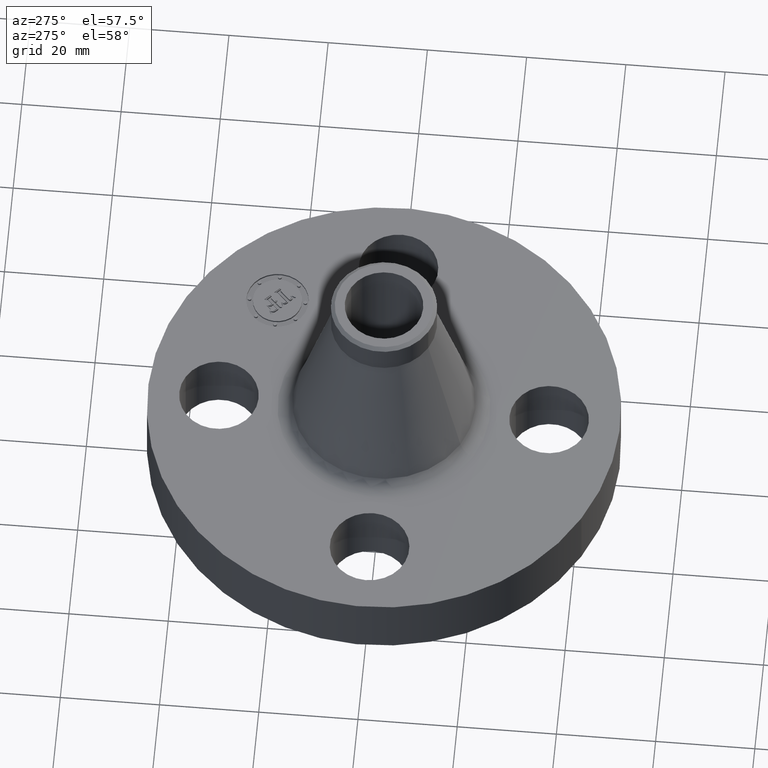
[diagram: clean part render]
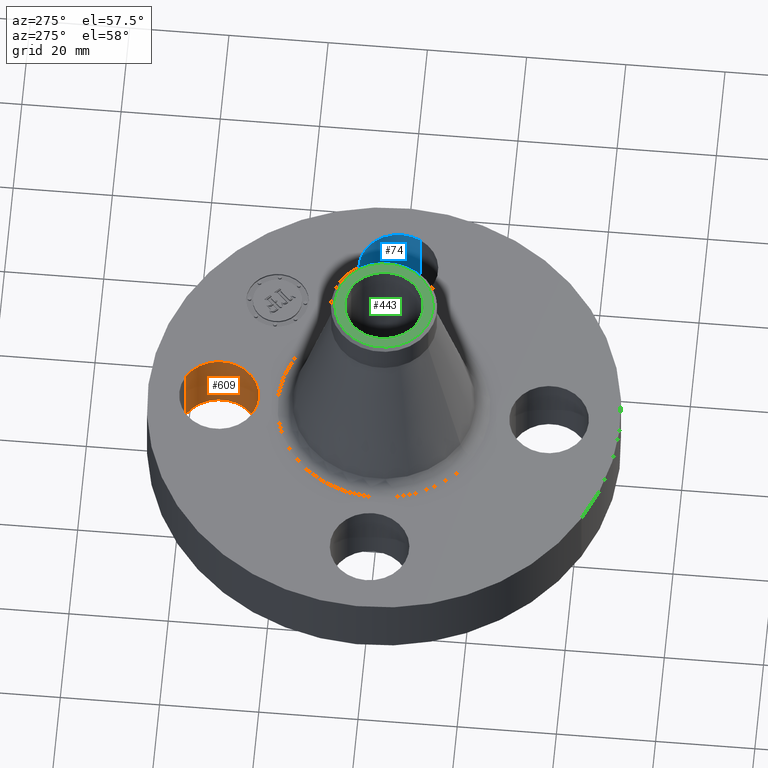
[diagram: same view with three faces highlighted in distinct colors, each labeled with its STEP entity id]
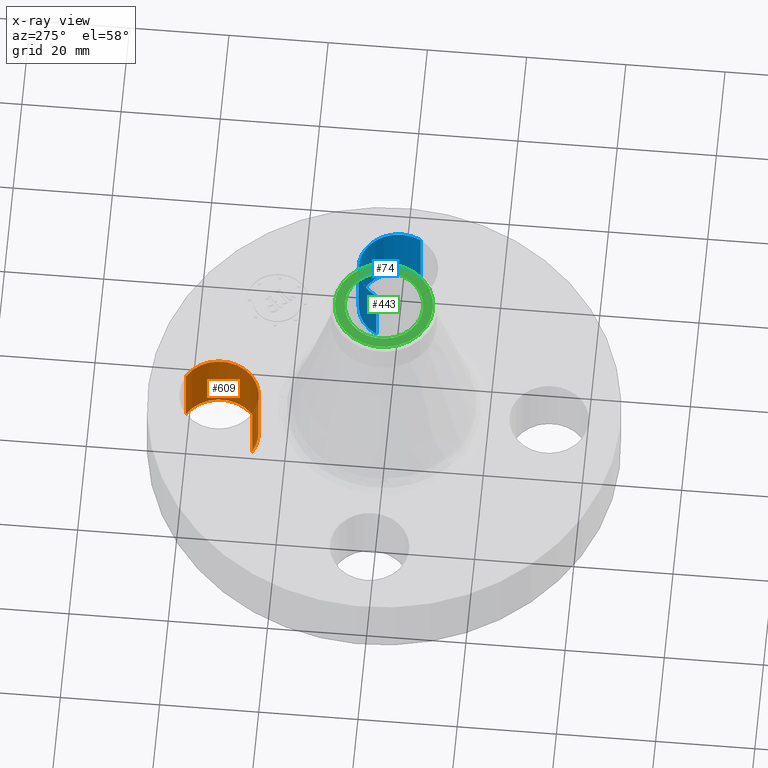
[diagram: x-ray of the same camera — body ghosted, the three highlighted faces saturated]
A machine part, auxiliary view with three faces highlighted in distinct colors.
The next image is the same camera in x-ray (body ghosted, the three faces saturated) — at least one of them is partly hidden behind the body in this view.
Their STEP definitions:

[orange] entity #609 — the highlighted cylindrical surface (partial cylindrical patch) has radius 8.001 mm, axis along (0, 0, -1).
#559=AXIS2_PLACEMENT_3D('Circle Axis2P3D',#557,#558,$) ;
#570=AXIS2_PLACEMENT_3D('Cylinder Axis2P3D',#567,#568,#569) ;
#600=AXIS2_PLACEMENT_3D('Circle Axis2P3D',#598,#599,$) ;
#552=CARTESIAN_POINT('Vertex',(-0.151019044661,1.03356149301,0.)) ;
#554=CARTESIAN_POINT('Vertex',(0.151019044661,1.586438507,6.99353086378E-017)) ;
#557=CARTESIAN_POINT('Axis2P3D Location',(-3.1470888887E-016,1.31000000001,0.)) ;
#567=CARTESIAN_POINT('Axis2P3D Location',(-2.40643096033E-016,1.31000000001,0.556062992128)) ;
#572=CARTESIAN_POINT('Line Origine',(-0.151019044661,1.03356149301,0.280000000001)) ;
#576=CARTESIAN_POINT('Vertex',(-0.151019044661,1.03356149301,0.560000000002)) ;
#579=CARTESIAN_POINT('Line Origine',(0.151019044661,1.586438507,0.280000000001)) ;
#583=CARTESIAN_POINT('Vertex',(0.151019044661,1.586438507,0.560000000002)) ;
#598=CARTESIAN_POINT('Axis2P3D Location',(-2.40643096033E-016,1.31000000001,0.560000000002)) ;
#558=DIRECTION('Axis2P3D Direction',(0.,0.,-0.0393700787402)) ;
#568=DIRECTION('Axis2P3D Direction',(0.,0.,-0.0393700787402)) ;
#569=DIRECTION('Axis2P3D XDirection',(0.0188750212049,0.0345504945626,0.)) ;
#573=DIRECTION('Vector Direction',(0.,0.,-0.0393700787402)) ;
#580=DIRECTION('Vector Direction',(0.,0.,-0.0393700787402)) ;
#599=DIRECTION('Axis2P3D Direction',(0.,0.,-0.0393700787402)) ;
#574=VECTOR('Line Direction',#573,0.0393700787402) ;
#581=VECTOR('Line Direction',#580,0.0393700787402) ;
#604=ORIENTED_EDGE('',*,*,#585,.F.) ;
#605=ORIENTED_EDGE('',*,*,#561,.T.) ;
#606=ORIENTED_EDGE('',*,*,#578,.T.) ;
#607=ORIENTED_EDGE('',*,*,#602,.F.) ;
#609=ADVANCED_FACE('PartBody',(#608),#571,.F.) ;
#560=CIRCLE('generated circle',#559,0.315000000001) ;
#601=CIRCLE('generated circle',#600,0.315000000001) ;
#571=CYLINDRICAL_SURFACE('generated cylinder',#570,0.315000000001) ;
#561=EDGE_CURVE('',#555,#553,#560,.T.) ;
#578=EDGE_CURVE('',#553,#577,#575,.F.) ;
#585=EDGE_CURVE('',#555,#584,#582,.F.) ;
#602=EDGE_CURVE('',#584,#577,#601,.T.) ;
#603=EDGE_LOOP('',(#604,#605,#606,#607)) ;
#608=FACE_OUTER_BOUND('',#603,.T.) ;
#575=LINE('Line',#572,#574) ;
#582=LINE('Line',#579,#581) ;
#553=VERTEX_POINT('',#552) ;
#555=VERTEX_POINT('',#554) ;
#577=VERTEX_POINT('',#576) ;
#584=VERTEX_POINT('',#583) ;

[blue] entity #74 — the highlighted cylindrical surface (partial cylindrical patch) has radius 8.001 mm, axis along (0, -0, -1).
#38=AXIS2_PLACEMENT_3D('Cylinder Axis2P3D',#35,#36,#37) ;
#51=AXIS2_PLACEMENT_3D('Circle Axis2P3D',#49,#50,$) ;
#65=AXIS2_PLACEMENT_3D('Circle Axis2P3D',#63,#64,$) ;
#35=CARTESIAN_POINT('Axis2P3D Location',(1.31000000001,0.,0.556062992128)) ;
#40=CARTESIAN_POINT('Line Origine',(1.03356149301,0.151019044661,0.280000000001)) ;
#44=CARTESIAN_POINT('Vertex',(1.03356149301,0.151019044661,6.99353086378E-017)) ;
#46=CARTESIAN_POINT('Vertex',(1.03356149301,0.151019044661,0.560000000002)) ;
#49=CARTESIAN_POINT('Axis2P3D Location',(1.31000000001,0.,0.)) ;
#53=CARTESIAN_POINT('Vertex',(1.586438507,-0.151019044661,6.99353086378E-017)) ;
#56=CARTESIAN_POINT('Line Origine',(1.586438507,-0.151019044661,0.280000000001)) ;
#60=CARTESIAN_POINT('Vertex',(1.586438507,-0.151019044661,0.560000000002)) ;
#63=CARTESIAN_POINT('Axis2P3D Location',(1.31000000001,0.,0.560000000002)) ;
#36=DIRECTION('Axis2P3D Direction',(0.,-0.,-0.0393700787402)) ;
#37=DIRECTION('Axis2P3D XDirection',(0.0345504945626,-0.0188750212049,0.)) ;
#41=DIRECTION('Vector Direction',(0.,0.,-0.0393700787402)) ;
#50=DIRECTION('Axis2P3D Direction',(0.,-0.,-0.0393700787402)) ;
#57=DIRECTION('Vector Direction',(0.,0.,-0.0393700787402)) ;
#64=DIRECTION('Axis2P3D Direction',(0.,-0.,-0.0393700787402)) ;
#42=VECTOR('Line Direction',#41,0.0393700787402) ;
#58=VECTOR('Line Direction',#57,0.0393700787402) ;
#69=ORIENTED_EDGE('',*,*,#48,.F.) ;
#70=ORIENTED_EDGE('',*,*,#55,.T.) ;
#71=ORIENTED_EDGE('',*,*,#62,.T.) ;
#72=ORIENTED_EDGE('',*,*,#67,.F.) ;
#74=ADVANCED_FACE('PartBody',(#73),#39,.F.) ;
#52=CIRCLE('generated circle',#51,0.315000000001) ;
#66=CIRCLE('generated circle',#65,0.315000000001) ;
#39=CYLINDRICAL_SURFACE('generated cylinder',#38,0.315000000001) ;
#48=EDGE_CURVE('',#45,#47,#43,.F.) ;
#55=EDGE_CURVE('',#45,#54,#52,.T.) ;
#62=EDGE_CURVE('',#54,#61,#59,.F.) ;
#67=EDGE_CURVE('',#47,#61,#66,.T.) ;
#68=EDGE_LOOP('',(#69,#70,#71,#72)) ;
#73=FACE_OUTER_BOUND('',#68,.T.) ;
#43=LINE('Line',#40,#42) ;
#59=LINE('Line',#56,#58) ;
#45=VERTEX_POINT('',#44) ;
#47=VERTEX_POINT('',#46) ;
#54=VERTEX_POINT('',#53) ;
#61=VERTEX_POINT('',#60) ;

[green] entity #443 — the highlighted planar face has unit normal (0, 0, -1).
#322=AXIS2_PLACEMENT_3D('Circle Axis2P3D',#320,#321,$) ;
#347=AXIS2_PLACEMENT_3D('Circle Axis2P3D',#345,#346,$) ;
#382=AXIS2_PLACEMENT_3D('Circle Axis2P3D',#380,#381,$) ;
#428=AXIS2_PLACEMENT_3D('Plane Axis2P3D',#425,#426,#427) ;
#432=AXIS2_PLACEMENT_3D('Circle Axis2P3D',#430,#431,$) ;
#317=CARTESIAN_POINT('Vertex',(0.186851384916,-0.342029165874,2.06000000001)) ;
#320=CARTESIAN_POINT('Axis2P3D Location',(0.,0.,2.06000000001)) ;
#324=CARTESIAN_POINT('Vertex',(-0.186851384916,0.342029165874,2.06000000001)) ;
#345=CARTESIAN_POINT('Axis2P3D Location',(0.,0.,2.06000000001)) ;
#349=CARTESIAN_POINT('Vertex',(0.149101342507,0.272928176749,2.06000000001)) ;
#351=CARTESIAN_POINT('Vertex',(-0.149101342507,-0.272928176749,2.06000000001)) ;
#380=CARTESIAN_POINT('Axis2P3D Location',(0.,0.,2.06000000001)) ;
#425=CARTESIAN_POINT('Axis2P3D Location',(0.,0.420000000002,2.06000000001)) ;
#430=CARTESIAN_POINT('Axis2P3D Location',(0.,0.,2.06000000001)) ;
#321=DIRECTION('Axis2P3D Direction',(0.,0.,-0.0393700787402)) ;
#346=DIRECTION('Axis2P3D Direction',(0.,0.,-0.0393700787402)) ;
#381=DIRECTION('Axis2P3D Direction',(0.,0.,-0.0393700787402)) ;
#426=DIRECTION('Axis2P3D Direction',(0.,0.,-0.0393700787402)) ;
#427=DIRECTION('Axis2P3D XDirection',(0.0393700787402,0.,0.)) ;
#431=DIRECTION('Axis2P3D Direction',(0.,0.,-0.0393700787402)) ;
#436=ORIENTED_EDGE('',*,*,#434,.T.) ;
#437=ORIENTED_EDGE('',*,*,#326,.T.) ;
#440=ORIENTED_EDGE('',*,*,#384,.T.) ;
#441=ORIENTED_EDGE('',*,*,#353,.T.) ;
#442=FACE_BOUND('',#439,.T.) ;
#443=ADVANCED_FACE('PartBody',(#438,#442),#429,.F.) ;
#323=CIRCLE('generated circle',#322,0.389740157482) ;
#348=CIRCLE('generated circle',#347,0.311000000001) ;
#383=CIRCLE('generated circle',#382,0.311000000001) ;
#433=CIRCLE('generated circle',#432,0.389740157482) ;
#326=EDGE_CURVE('',#325,#318,#323,.F.) ;
#353=EDGE_CURVE('',#350,#352,#348,.T.) ;
#384=EDGE_CURVE('',#352,#350,#383,.T.) ;
#434=EDGE_CURVE('',#318,#325,#433,.F.) ;
#435=EDGE_LOOP('',(#436,#437)) ;
#439=EDGE_LOOP('',(#440,#441)) ;
#438=FACE_OUTER_BOUND('',#435,.T.) ;
#429=PLANE('',#428) ;
#318=VERTEX_POINT('',#317) ;
#325=VERTEX_POINT('',#324) ;
#350=VERTEX_POINT('',#349) ;
#352=VERTEX_POINT('',#351) ;